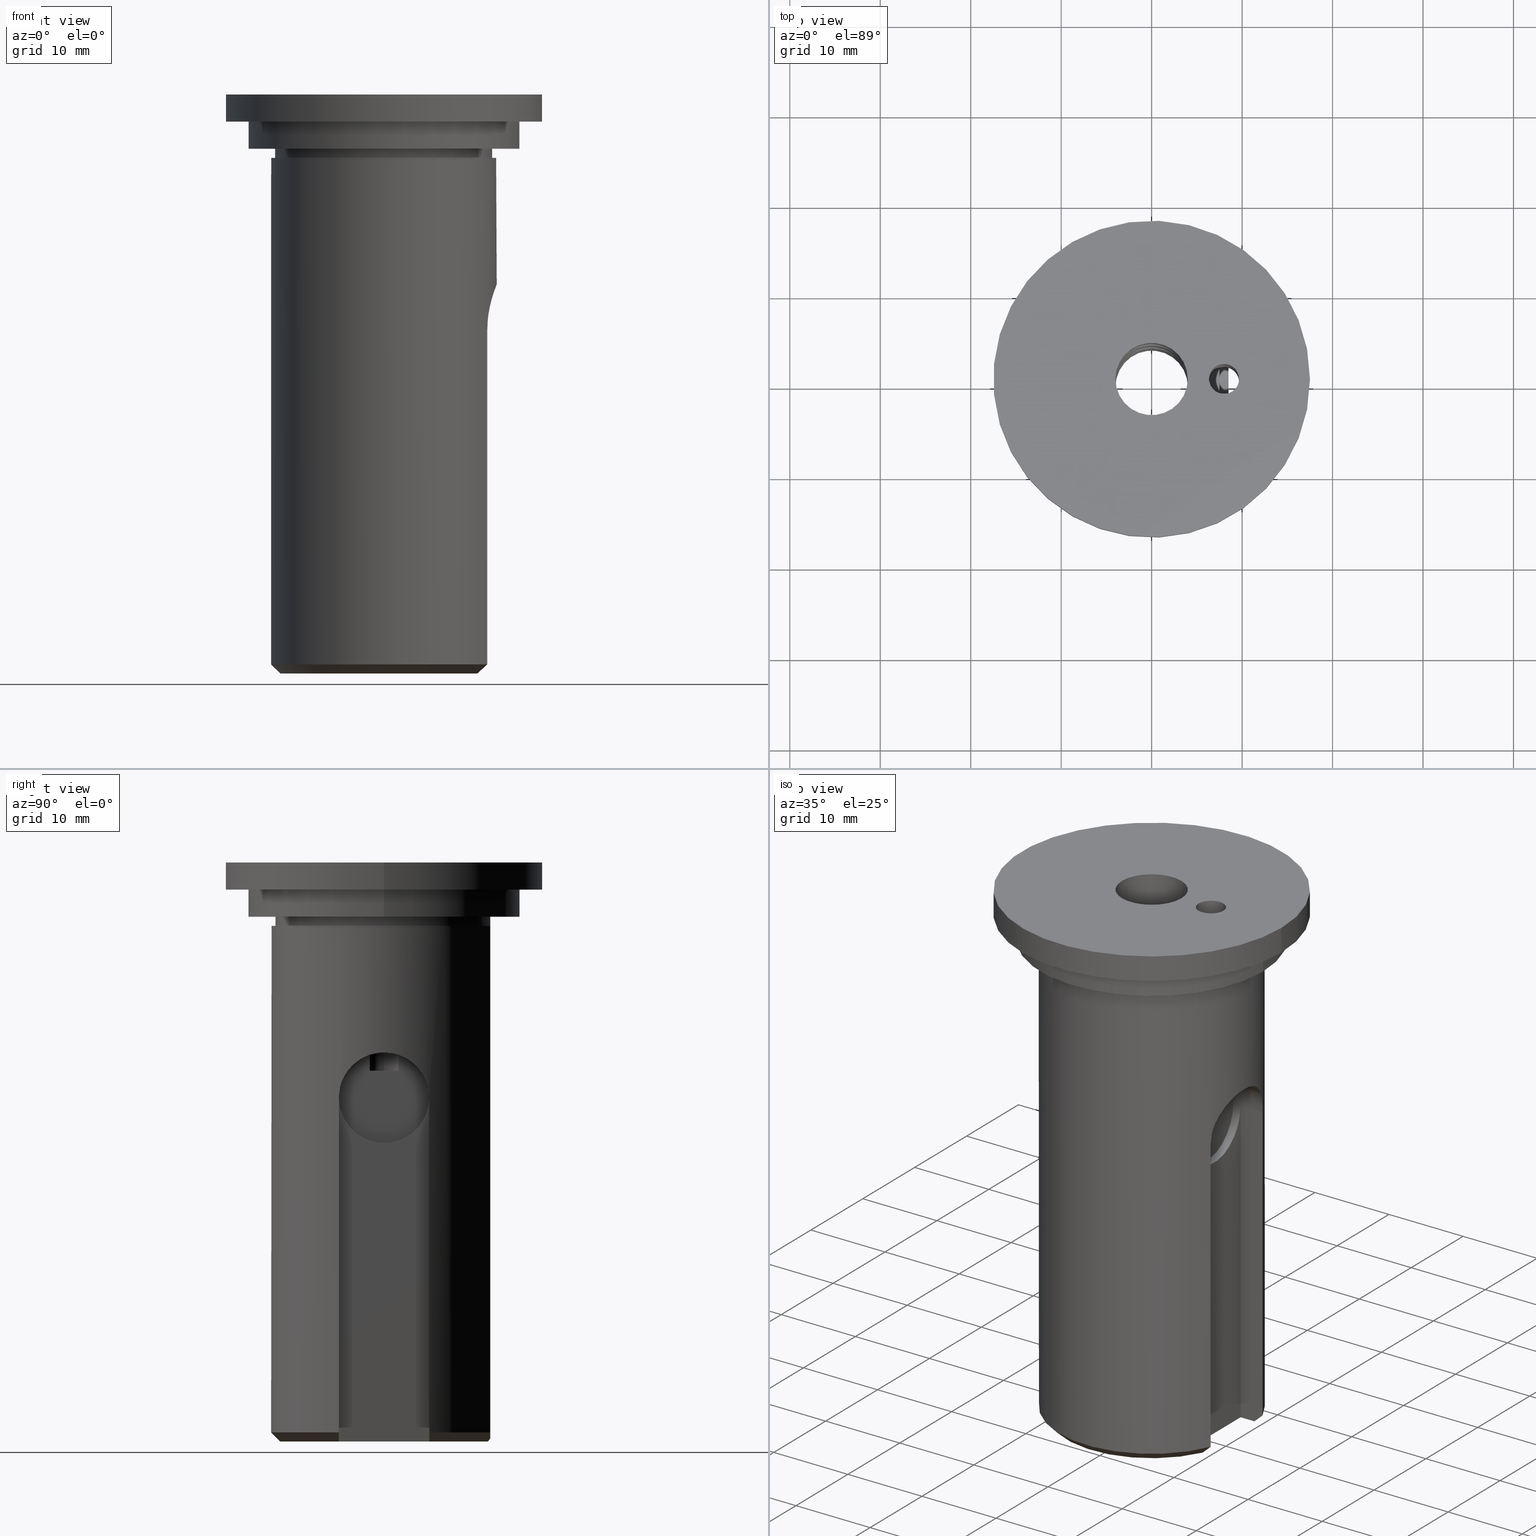
[diagram: canonical four-view strip — front | top / right | iso, engineering-drawing reading convention]
A machine part, canonical four-view strip (front | top / right | iso — engineering-drawing reading convention). The complete STEP part file that produces these views, byte-faithful:
ISO-10303-21;
HEADER;
/* Generated by software containing ST-Developer
 * from STEP Tools, Inc. (www.steptools.com) 
 */

FILE_DESCRIPTION(
/* description */ (''),
/* implementation_level */ '2;1');

FILE_NAME(
/* name */ 
'Y:/\X2\FF1166FD683975305DE5696D5171670930D530A130A430EB\X0\/\X2\30B930EA30FC30D6\X0\/
NC25-08OH/NC25-08OH v2.step',
/* time_stamp */ '2022-04-05T08:10:51+09:00',
/* author */ (''),
/* organization */ (''),
/* preprocessor_version */ 'ST-DEVELOPER v18.1',
/* originating_system */ 'Autodesk Translation Framework v10.14.0.1471',

/* authorisation */ '');

FILE_SCHEMA (('AUTOMOTIVE_DESIGN { 1 0 10303 214 3 1 1 }'));
ENDSEC;

DATA;
#10=MECHANICAL_DESIGN_GEOMETRIC_PRESENTATION_REPRESENTATION('',(#13),#846);
#11=SHAPE_REPRESENTATION_RELATIONSHIP('SRR','None',#853,#12);
#12=ADVANCED_BREP_SHAPE_REPRESENTATION('',(#14),#845);
#13=STYLED_ITEM('',(#862),#14);
#14=MANIFOLD_SOLID_BREP('\X2\30DC30C730A3\X0\1',#430);
#15=CONICAL_SURFACE('',#463,12.,0.785398163397454);
#16=FACE_BOUND('',#73,.T.);
#17=FACE_BOUND('',#78,.T.);
#18=FACE_BOUND('',#79,.T.);
#19=FACE_BOUND('',#81,.T.);
#20=FACE_BOUND('',#82,.T.);
#21=FACE_BOUND('',#85,.T.);
#22=FACE_BOUND('',#88,.T.);
#23=FACE_BOUND('',#93,.T.);
#24=FACE_BOUND('',#95,.T.);
#25=FACE_BOUND('',#96,.T.);
#26=(
BOUNDED_CURVE()
B_SPLINE_CURVE(2,(#690,#691,#692),.UNSPECIFIED.,.F.,.F.)
B_SPLINE_CURVE_WITH_KNOTS((3,3),(0.,0.148681884146899),.UNSPECIFIED.)
CURVE()
GEOMETRIC_REPRESENTATION_ITEM()
RATIONAL_B_SPLINE_CURVE((1.,1.00105254461095,1.))
REPRESENTATION_ITEM('')
);
#27=(
BOUNDED_CURVE()
B_SPLINE_CURVE(2,(#697,#698,#699),.UNSPECIFIED.,.F.,.F.)
B_SPLINE_CURVE_WITH_KNOTS((3,3),(0.,0.148681884146899),.UNSPECIFIED.)
CURVE()
GEOMETRIC_REPRESENTATION_ITEM()
RATIONAL_B_SPLINE_CURVE((1.,1.00105254460838,1.))
REPRESENTATION_ITEM('')
);
#28=(
BOUNDED_CURVE()
B_SPLINE_CURVE(2,(#716,#717,#718),.UNSPECIFIED.,.F.,.F.)
B_SPLINE_CURVE_WITH_KNOTS((3,3),(0.,0.86602540378443),.UNSPECIFIED.)
CURVE()
GEOMETRIC_REPRESENTATION_ITEM()
RATIONAL_B_SPLINE_CURVE((1.,1.06382978723403,1.))
REPRESENTATION_ITEM('')
);
#29=PLANE('',#448);
#30=PLANE('',#452);
#31=PLANE('',#453);
#32=PLANE('',#454);
#33=PLANE('',#455);
#34=PLANE('',#460);
#35=PLANE('',#468);
#36=PLANE('',#469);
#37=PLANE('',#474);
#38=PLANE('',#478);
#39=PLANE('',#482);
#40=PLANE('',#485);
#41=FACE_OUTER_BOUND('',#64,.T.);
#42=FACE_OUTER_BOUND('',#65,.T.);
#43=FACE_OUTER_BOUND('',#66,.T.);
#44=FACE_OUTER_BOUND('',#67,.T.);
#45=FACE_OUTER_BOUND('',#68,.T.);
#46=FACE_OUTER_BOUND('',#69,.T.);
#47=FACE_OUTER_BOUND('',#70,.T.);
#48=FACE_OUTER_BOUND('',#71,.T.);
#49=FACE_OUTER_BOUND('',#72,.T.);
#50=FACE_OUTER_BOUND('',#74,.T.);
#51=FACE_OUTER_BOUND('',#75,.T.);
#52=FACE_OUTER_BOUND('',#76,.T.);
#53=FACE_OUTER_BOUND('',#77,.T.);
#54=FACE_OUTER_BOUND('',#80,.T.);
#55=FACE_OUTER_BOUND('',#83,.T.);
#56=FACE_OUTER_BOUND('',#84,.T.);
#57=FACE_OUTER_BOUND('',#86,.T.);
#58=FACE_OUTER_BOUND('',#87,.T.);
#59=FACE_OUTER_BOUND('',#89,.T.);
#60=FACE_OUTER_BOUND('',#90,.T.);
#61=FACE_OUTER_BOUND('',#91,.T.);
#62=FACE_OUTER_BOUND('',#92,.T.);
#63=FACE_OUTER_BOUND('',#94,.T.);
#64=EDGE_LOOP('',(#279,#280,#281,#282,#283,#284,#285,#286,#287));
#65=EDGE_LOOP('',(#288,#289,#290));
#66=EDGE_LOOP('',(#291,#292,#293,#294,#295,#296,#297,#298,#299,#300));
#67=EDGE_LOOP('',(#301,#302,#303,#304));
#68=EDGE_LOOP('',(#305,#306,#307,#308));
#69=EDGE_LOOP('',(#309,#310,#311,#312,#313));
#70=EDGE_LOOP('',(#314,#315,#316,#317,#318));
#71=EDGE_LOOP('',(#319,#320,#321,#322,#323,#324,#325,#326,#327));
#72=EDGE_LOOP('',(#328,#329,#330,#331));
#73=EDGE_LOOP('',(#332));
#74=EDGE_LOOP('',(#333,#334,#335,#336,#337,#338));
#75=EDGE_LOOP('',(#339,#340,#341,#342,#343));
#76=EDGE_LOOP('',(#344,#345,#346,#347,#348));
#77=EDGE_LOOP('',(#349,#350,#351,#352,#353,#354,#355,#356));
#78=EDGE_LOOP('',(#357));
#79=EDGE_LOOP('',(#358));
#80=EDGE_LOOP('',(#359));
#81=EDGE_LOOP('',(#360));
#82=EDGE_LOOP('',(#361));
#83=EDGE_LOOP('',(#362,#363,#364,#365));
#84=EDGE_LOOP('',(#366));
#85=EDGE_LOOP('',(#367));
#86=EDGE_LOOP('',(#368,#369,#370,#371));
#87=EDGE_LOOP('',(#372));
#88=EDGE_LOOP('',(#373,#374));
#89=EDGE_LOOP('',(#375,#376,#377,#378));
#90=EDGE_LOOP('',(#379,#380,#381,#382));
#91=EDGE_LOOP('',(#383,#384,#385,#386));
#92=EDGE_LOOP('',(#387));
#93=EDGE_LOOP('',(#388));
#94=EDGE_LOOP('',(#389,#390,#391,#392));
#95=EDGE_LOOP('',(#393,#394));
#96=EDGE_LOOP('',(#395,#396));
#97=B_SPLINE_CURVE_WITH_KNOTS('',3,(#616,#617,#618,#619,#620,#621,#622,
#623,#624,#625,#626,#627),.UNSPECIFIED.,.F.,.F.,(4,2,2,2,2,4),(0.457106640739436,
0.506260606866501,0.569557836584048,0.632855066301595,0.696122988300673,
0.759390910299751),.UNSPECIFIED.);
#98=B_SPLINE_CURVE_WITH_KNOTS('',3,(#629,#630,#631,#632,#633,#634,#635,
#636,#637,#638,#639,#640,#641),.UNSPECIFIED.,.F.,.F.,(4,2,2,2,3,4),(0.759390910299751,
0.822658832298829,0.885926754297907,0.949223984015455,1.012521213733,1.06167517986007),
 .UNSPECIFIED.);
#99=B_SPLINE_CURVE_WITH_KNOTS('',3,(#650,#651,#652,#653,#654,#655,#656,
#657,#658,#659),.UNSPECIFIED.,.F.,.F.,(4,2,2,2,4),(-0.762729335551936,-0.572143500402293,
-0.381557665252652,-0.190778832626326,0.),.UNSPECIFIED.);
#100=B_SPLINE_CURVE_WITH_KNOTS('',3,(#663,#664,#665,#666,#667,#668,#669,
#670,#671,#672),.UNSPECIFIED.,.F.,.F.,(4,2,2,2,4),(-1.52545867110387,-1.33467983847755,
-1.14390100585122,-0.953315170701578,-0.762729335551936),.UNSPECIFIED.);
#101=B_SPLINE_CURVE_WITH_KNOTS('',3,(#725,#726,#727,#728,#729,#730,#731,
#732,#733,#734,#735,#736,#737,#738,#739,#740,#741,#742),.UNSPECIFIED.,.F.,
 .F.,(4,2,2,2,2,2,2,2,4),(0.,0.0986235986499876,0.197247197299975,0.295063559412484,
0.392879921524993,0.490696283637503,0.588512645750012,0.687136244399999,
0.785759843049987),.UNSPECIFIED.);
#102=B_SPLINE_CURVE_WITH_KNOTS('',3,(#743,#744,#745,#746,#747,#748,#749,
#750,#751,#752,#753,#754,#755,#756,#757,#758,#759,#760),.UNSPECIFIED.,.F.,
 .F.,(4,2,2,2,2,2,2,2,4),(0.785759843049987,0.884383441699975,0.983007040349962,
1.08082340246247,1.17863976457498,1.27645612668749,1.3742724888,1.47289608744999,
1.57151968609997),.UNSPECIFIED.);
#103=B_SPLINE_CURVE_WITH_KNOTS('',3,(#767,#768,#769,#770,#771,#772,#773,
#774,#775,#776,#777,#778,#779,#780,#781,#782,#783,#784),.UNSPECIFIED.,.F.,
 .F.,(4,2,2,2,2,2,2,2,4),(0.,0.0986235986499876,0.197247197299975,0.295063559412484,
0.392879921524993,0.490696283637503,0.588512645750012,0.687136244399999,
0.785759843049987),.UNSPECIFIED.);
#104=B_SPLINE_CURVE_WITH_KNOTS('',3,(#785,#786,#787,#788,#789,#790,#791,
#792,#793,#794,#795,#796,#797,#798,#799,#800,#801,#802),.UNSPECIFIED.,.F.,
 .F.,(4,2,2,2,2,2,2,2,4),(0.785759843049987,0.884383441699974,0.983007040349962,
1.08082340246247,1.17863976457498,1.27645612668749,1.3742724888,1.47289608744999,
1.57151968609997),.UNSPECIFIED.);
#105=LINE('',#610,#132);
#106=LINE('',#614,#133);
#107=LINE('',#643,#134);
#108=LINE('',#646,#135);
#109=LINE('',#660,#136);
#110=LINE('',#674,#137);
#111=LINE('',#677,#138);
#112=LINE('',#681,#139);
#113=LINE('',#683,#140);
#114=LINE('',#684,#141);
#115=LINE('',#687,#142);
#116=LINE('',#689,#143);
#117=LINE('',#695,#144);
#118=LINE('',#700,#145);
#119=LINE('',#705,#146);
#120=LINE('',#709,#147);
#121=LINE('',#723,#148);
#122=LINE('',#765,#149);
#123=LINE('',#806,#150);
#124=LINE('',#808,#151);
#125=LINE('',#810,#152);
#126=LINE('',#811,#153);
#127=LINE('',#812,#154);
#128=LINE('',#821,#155);
#129=LINE('',#828,#156);
#130=LINE('',#836,#157);
#131=LINE('',#842,#158);
#132=VECTOR('',#494,1.6);
#133=VECTOR('',#497,10.);
#134=VECTOR('',#498,10.);
#135=VECTOR('',#503,10.);
#136=VECTOR('',#506,5.);
#137=VECTOR('',#509,10.);
#138=VECTOR('',#512,10.);
#139=VECTOR('',#517,10.);
#140=VECTOR('',#518,10.);
#141=VECTOR('',#519,10.);
#142=VECTOR('',#522,10.);
#143=VECTOR('',#523,10.);
#144=VECTOR('',#526,10.);
#145=VECTOR('',#527,10.);
#146=VECTOR('',#532,10.);
#147=VECTOR('',#535,10.);
#148=VECTOR('',#550,2.55);
#149=VECTOR('',#555,2.55);
#150=VECTOR('',#558,10.);
#151=VECTOR('',#559,10.);
#152=VECTOR('',#560,10.);
#153=VECTOR('',#561,10.);
#154=VECTOR('',#562,10.);
#155=VECTOR('',#573,17.5);
#156=VECTOR('',#582,15.);
#157=VECTOR('',#595,5.00000000000012);
#158=VECTOR('',#604,4.);
#159=CIRCLE('',#445,1.666);
#160=CIRCLE('',#446,1.666);
#161=CIRCLE('',#447,1.666);
#162=CIRCLE('',#450,5.);
#163=CIRCLE('',#451,5.);
#164=CIRCLE('',#457,12.5);
#165=CIRCLE('',#458,12.5);
#166=CIRCLE('',#459,12.5);
#167=CIRCLE('',#461,11.5);
#168=CIRCLE('',#462,5.00000000000024);
#169=CIRCLE('',#465,2.5175);
#170=CIRCLE('',#467,2.5175);
#171=CIRCLE('',#470,17.5);
#172=CIRCLE('',#471,4.);
#173=CIRCLE('',#473,17.5);
#174=CIRCLE('',#475,15.);
#175=CIRCLE('',#477,15.);
#176=CIRCLE('',#479,12.);
#177=CIRCLE('',#481,12.);
#178=CIRCLE('',#484,4.99999999999999);
#179=CIRCLE('',#486,4.);
#180=VERTEX_POINT('',#607);
#181=VERTEX_POINT('',#609);
#182=VERTEX_POINT('',#611);
#183=VERTEX_POINT('',#613);
#184=VERTEX_POINT('',#615);
#185=VERTEX_POINT('',#628);
#186=VERTEX_POINT('',#642);
#187=VERTEX_POINT('',#648);
#188=VERTEX_POINT('',#649);
#189=VERTEX_POINT('',#662);
#190=VERTEX_POINT('',#673);
#191=VERTEX_POINT('',#675);
#192=VERTEX_POINT('',#680);
#193=VERTEX_POINT('',#682);
#194=VERTEX_POINT('',#686);
#195=VERTEX_POINT('',#688);
#196=VERTEX_POINT('',#694);
#197=VERTEX_POINT('',#696);
#198=VERTEX_POINT('',#702);
#199=VERTEX_POINT('',#704);
#200=VERTEX_POINT('',#706);
#201=VERTEX_POINT('',#708);
#202=VERTEX_POINT('',#713);
#203=VERTEX_POINT('',#720);
#204=VERTEX_POINT('',#722);
#205=VERTEX_POINT('',#724);
#206=VERTEX_POINT('',#762);
#207=VERTEX_POINT('',#764);
#208=VERTEX_POINT('',#766);
#209=VERTEX_POINT('',#804);
#210=VERTEX_POINT('',#805);
#211=VERTEX_POINT('',#807);
#212=VERTEX_POINT('',#809);
#213=VERTEX_POINT('',#814);
#214=VERTEX_POINT('',#816);
#215=VERTEX_POINT('',#819);
#216=VERTEX_POINT('',#823);
#217=VERTEX_POINT('',#826);
#218=VERTEX_POINT('',#835);
#219=VERTEX_POINT('',#839);
#220=EDGE_CURVE('',#180,#180,#159,.T.);
#221=EDGE_CURVE('',#180,#181,#105,.T.);
#222=EDGE_CURVE('',#181,#182,#160,.T.);
#223=EDGE_CURVE('',#183,#182,#106,.T.);
#224=EDGE_CURVE('',#184,#183,#97,.F.);
#225=EDGE_CURVE('',#185,#184,#98,.F.);
#226=EDGE_CURVE('',#186,#185,#107,.T.);
#227=EDGE_CURVE('',#186,#181,#161,.T.);
#228=EDGE_CURVE('',#182,#186,#108,.T.);
#229=EDGE_CURVE('',#187,#188,#99,.T.);
#230=EDGE_CURVE('',#187,#184,#109,.T.);
#231=EDGE_CURVE('',#183,#185,#162,.T.);
#232=EDGE_CURVE('',#189,#187,#100,.T.);
#233=EDGE_CURVE('',#189,#190,#110,.T.);
#234=EDGE_CURVE('',#191,#190,#163,.T.);
#235=EDGE_CURVE('',#188,#191,#111,.T.);
#236=EDGE_CURVE('',#192,#190,#112,.T.);
#237=EDGE_CURVE('',#193,#192,#113,.T.);
#238=EDGE_CURVE('',#191,#193,#114,.T.);
#239=EDGE_CURVE('',#188,#194,#115,.T.);
#240=EDGE_CURVE('',#195,#193,#116,.T.);
#241=EDGE_CURVE('',#194,#195,#26,.T.);
#242=EDGE_CURVE('',#196,#189,#117,.T.);
#243=EDGE_CURVE('',#197,#196,#27,.T.);
#244=EDGE_CURVE('',#192,#197,#118,.T.);
#245=EDGE_CURVE('',#198,#194,#164,.T.);
#246=EDGE_CURVE('',#198,#199,#119,.T.);
#247=EDGE_CURVE('',#199,#200,#165,.T.);
#248=EDGE_CURVE('',#200,#201,#120,.T.);
#249=EDGE_CURVE('',#196,#201,#166,.T.);
#250=EDGE_CURVE('',#197,#195,#167,.T.);
#251=EDGE_CURVE('',#202,#202,#168,.T.);
#252=EDGE_CURVE('',#201,#198,#28,.T.);
#253=EDGE_CURVE('',#203,#203,#169,.F.);
#254=EDGE_CURVE('',#203,#204,#121,.T.);
#255=EDGE_CURVE('',#205,#204,#101,.T.);
#256=EDGE_CURVE('',#204,#205,#102,.T.);
#257=EDGE_CURVE('',#206,#206,#170,.F.);
#258=EDGE_CURVE('',#206,#207,#122,.T.);
#259=EDGE_CURVE('',#208,#207,#103,.T.);
#260=EDGE_CURVE('',#207,#208,#104,.T.);
#261=EDGE_CURVE('',#209,#210,#123,.T.);
#262=EDGE_CURVE('',#209,#211,#124,.T.);
#263=EDGE_CURVE('',#212,#211,#125,.T.);
#264=EDGE_CURVE('',#199,#212,#126,.T.);
#265=EDGE_CURVE('',#210,#200,#127,.T.);
#266=EDGE_CURVE('',#213,#213,#171,.T.);
#267=EDGE_CURVE('',#214,#214,#172,.T.);
#268=EDGE_CURVE('',#215,#215,#173,.T.);
#269=EDGE_CURVE('',#215,#213,#128,.T.);
#270=EDGE_CURVE('',#216,#216,#174,.T.);
#271=EDGE_CURVE('',#217,#217,#175,.T.);
#272=EDGE_CURVE('',#217,#216,#129,.T.);
#273=EDGE_CURVE('',#211,#209,#176,.T.);
#274=EDGE_CURVE('',#212,#210,#177,.T.);
#275=EDGE_CURVE('',#202,#218,#130,.T.);
#276=EDGE_CURVE('',#218,#218,#178,.T.);
#277=EDGE_CURVE('',#219,#219,#179,.T.);
#278=EDGE_CURVE('',#219,#214,#131,.T.);
#279=ORIENTED_EDGE('',*,*,#220,.F.);
#280=ORIENTED_EDGE('',*,*,#221,.T.);
#281=ORIENTED_EDGE('',*,*,#222,.T.);
#282=ORIENTED_EDGE('',*,*,#223,.F.);
#283=ORIENTED_EDGE('',*,*,#224,.F.);
#284=ORIENTED_EDGE('',*,*,#225,.F.);
#285=ORIENTED_EDGE('',*,*,#226,.F.);
#286=ORIENTED_EDGE('',*,*,#227,.T.);
#287=ORIENTED_EDGE('',*,*,#221,.F.);
#288=ORIENTED_EDGE('',*,*,#228,.F.);
#289=ORIENTED_EDGE('',*,*,#222,.F.);
#290=ORIENTED_EDGE('',*,*,#227,.F.);
#291=ORIENTED_EDGE('',*,*,#229,.F.);
#292=ORIENTED_EDGE('',*,*,#230,.T.);
#293=ORIENTED_EDGE('',*,*,#224,.T.);
#294=ORIENTED_EDGE('',*,*,#231,.T.);
#295=ORIENTED_EDGE('',*,*,#225,.T.);
#296=ORIENTED_EDGE('',*,*,#230,.F.);
#297=ORIENTED_EDGE('',*,*,#232,.F.);
#298=ORIENTED_EDGE('',*,*,#233,.T.);
#299=ORIENTED_EDGE('',*,*,#234,.F.);
#300=ORIENTED_EDGE('',*,*,#235,.F.);
#301=ORIENTED_EDGE('',*,*,#226,.T.);
#302=ORIENTED_EDGE('',*,*,#231,.F.);
#303=ORIENTED_EDGE('',*,*,#223,.T.);
#304=ORIENTED_EDGE('',*,*,#228,.T.);
#305=ORIENTED_EDGE('',*,*,#234,.T.);
#306=ORIENTED_EDGE('',*,*,#236,.F.);
#307=ORIENTED_EDGE('',*,*,#237,.F.);
#308=ORIENTED_EDGE('',*,*,#238,.F.);
#309=ORIENTED_EDGE('',*,*,#239,.F.);
#310=ORIENTED_EDGE('',*,*,#235,.T.);
#311=ORIENTED_EDGE('',*,*,#238,.T.);
#312=ORIENTED_EDGE('',*,*,#240,.F.);
#313=ORIENTED_EDGE('',*,*,#241,.F.);
#314=ORIENTED_EDGE('',*,*,#242,.F.);
#315=ORIENTED_EDGE('',*,*,#243,.F.);
#316=ORIENTED_EDGE('',*,*,#244,.F.);
#317=ORIENTED_EDGE('',*,*,#236,.T.);
#318=ORIENTED_EDGE('',*,*,#233,.F.);
#319=ORIENTED_EDGE('',*,*,#239,.T.);
#320=ORIENTED_EDGE('',*,*,#245,.F.);
#321=ORIENTED_EDGE('',*,*,#246,.T.);
#322=ORIENTED_EDGE('',*,*,#247,.T.);
#323=ORIENTED_EDGE('',*,*,#248,.T.);
#324=ORIENTED_EDGE('',*,*,#249,.F.);
#325=ORIENTED_EDGE('',*,*,#242,.T.);
#326=ORIENTED_EDGE('',*,*,#232,.T.);
#327=ORIENTED_EDGE('',*,*,#229,.T.);
#328=ORIENTED_EDGE('',*,*,#240,.T.);
#329=ORIENTED_EDGE('',*,*,#237,.T.);
#330=ORIENTED_EDGE('',*,*,#244,.T.);
#331=ORIENTED_EDGE('',*,*,#250,.T.);
#332=ORIENTED_EDGE('',*,*,#251,.F.);
#333=ORIENTED_EDGE('',*,*,#241,.T.);
#334=ORIENTED_EDGE('',*,*,#250,.F.);
#335=ORIENTED_EDGE('',*,*,#243,.T.);
#336=ORIENTED_EDGE('',*,*,#249,.T.);
#337=ORIENTED_EDGE('',*,*,#252,.T.);
#338=ORIENTED_EDGE('',*,*,#245,.T.);
#339=ORIENTED_EDGE('',*,*,#253,.F.);
#340=ORIENTED_EDGE('',*,*,#254,.T.);
#341=ORIENTED_EDGE('',*,*,#255,.F.);
#342=ORIENTED_EDGE('',*,*,#256,.F.);
#343=ORIENTED_EDGE('',*,*,#254,.F.);
#344=ORIENTED_EDGE('',*,*,#257,.F.);
#345=ORIENTED_EDGE('',*,*,#258,.T.);
#346=ORIENTED_EDGE('',*,*,#259,.F.);
#347=ORIENTED_EDGE('',*,*,#260,.F.);
#348=ORIENTED_EDGE('',*,*,#258,.F.);
#349=ORIENTED_EDGE('',*,*,#261,.F.);
#350=ORIENTED_EDGE('',*,*,#262,.T.);
#351=ORIENTED_EDGE('',*,*,#263,.F.);
#352=ORIENTED_EDGE('',*,*,#264,.F.);
#353=ORIENTED_EDGE('',*,*,#246,.F.);
#354=ORIENTED_EDGE('',*,*,#252,.F.);
#355=ORIENTED_EDGE('',*,*,#248,.F.);
#356=ORIENTED_EDGE('',*,*,#265,.F.);
#357=ORIENTED_EDGE('',*,*,#253,.T.);
#358=ORIENTED_EDGE('',*,*,#257,.T.);
#359=ORIENTED_EDGE('',*,*,#266,.F.);
#360=ORIENTED_EDGE('',*,*,#220,.T.);
#361=ORIENTED_EDGE('',*,*,#267,.T.);
#362=ORIENTED_EDGE('',*,*,#268,.F.);
#363=ORIENTED_EDGE('',*,*,#269,.T.);
#364=ORIENTED_EDGE('',*,*,#266,.T.);
#365=ORIENTED_EDGE('',*,*,#269,.F.);
#366=ORIENTED_EDGE('',*,*,#268,.T.);
#367=ORIENTED_EDGE('',*,*,#270,.F.);
#368=ORIENTED_EDGE('',*,*,#271,.F.);
#369=ORIENTED_EDGE('',*,*,#272,.T.);
#370=ORIENTED_EDGE('',*,*,#270,.T.);
#371=ORIENTED_EDGE('',*,*,#272,.F.);
#372=ORIENTED_EDGE('',*,*,#271,.T.);
#373=ORIENTED_EDGE('',*,*,#273,.F.);
#374=ORIENTED_EDGE('',*,*,#262,.F.);
#375=ORIENTED_EDGE('',*,*,#261,.T.);
#376=ORIENTED_EDGE('',*,*,#274,.F.);
#377=ORIENTED_EDGE('',*,*,#263,.T.);
#378=ORIENTED_EDGE('',*,*,#273,.T.);
#379=ORIENTED_EDGE('',*,*,#265,.T.);
#380=ORIENTED_EDGE('',*,*,#247,.F.);
#381=ORIENTED_EDGE('',*,*,#264,.T.);
#382=ORIENTED_EDGE('',*,*,#274,.T.);
#383=ORIENTED_EDGE('',*,*,#251,.T.);
#384=ORIENTED_EDGE('',*,*,#275,.T.);
#385=ORIENTED_EDGE('',*,*,#276,.F.);
#386=ORIENTED_EDGE('',*,*,#275,.F.);
#387=ORIENTED_EDGE('',*,*,#276,.T.);
#388=ORIENTED_EDGE('',*,*,#277,.F.);
#389=ORIENTED_EDGE('',*,*,#277,.T.);
#390=ORIENTED_EDGE('',*,*,#278,.T.);
#391=ORIENTED_EDGE('',*,*,#267,.F.);
#392=ORIENTED_EDGE('',*,*,#278,.F.);
#393=ORIENTED_EDGE('',*,*,#255,.T.);
#394=ORIENTED_EDGE('',*,*,#256,.T.);
#395=ORIENTED_EDGE('',*,*,#259,.T.);
#396=ORIENTED_EDGE('',*,*,#260,.T.);
#397=CYLINDRICAL_SURFACE('',#444,1.666);
#398=CYLINDRICAL_SURFACE('',#449,5.);
#399=CYLINDRICAL_SURFACE('',#456,12.5);
#400=CYLINDRICAL_SURFACE('',#464,2.5175);
#401=CYLINDRICAL_SURFACE('',#466,2.5175);
#402=CYLINDRICAL_SURFACE('',#472,17.5);
#403=CYLINDRICAL_SURFACE('',#476,15.);
#404=CYLINDRICAL_SURFACE('',#480,12.);
#405=CYLINDRICAL_SURFACE('',#483,5.00000000000012);
#406=CYLINDRICAL_SURFACE('',#487,4.);
#407=ADVANCED_FACE('',(#41),#397,.F.);
#408=ADVANCED_FACE('',(#42),#29,.T.);
#409=ADVANCED_FACE('',(#43),#398,.F.);
#410=ADVANCED_FACE('',(#44),#30,.T.);
#411=ADVANCED_FACE('',(#45),#31,.T.);
#412=ADVANCED_FACE('',(#46),#32,.F.);
#413=ADVANCED_FACE('',(#47),#33,.F.);
#414=ADVANCED_FACE('',(#48),#399,.T.);
#415=ADVANCED_FACE('',(#49,#16),#34,.T.);
#416=ADVANCED_FACE('',(#50),#15,.T.);
#417=ADVANCED_FACE('',(#51),#400,.F.);
#418=ADVANCED_FACE('',(#52),#401,.F.);
#419=ADVANCED_FACE('',(#53,#17,#18),#35,.F.);
#420=ADVANCED_FACE('',(#54,#19,#20),#36,.T.);
#421=ADVANCED_FACE('',(#55),#402,.T.);
#422=ADVANCED_FACE('',(#56,#21),#37,.T.);
#423=ADVANCED_FACE('',(#57),#403,.T.);
#424=ADVANCED_FACE('',(#58,#22),#38,.T.);
#425=ADVANCED_FACE('',(#59),#404,.T.);
#426=ADVANCED_FACE('',(#60),#39,.T.);
#427=ADVANCED_FACE('',(#61),#405,.F.);
#428=ADVANCED_FACE('',(#62,#23),#40,.T.);
#429=ADVANCED_FACE('',(#63,#24,#25),#406,.F.);
#430=CLOSED_SHELL('',(#407,#408,#409,#410,#411,#412,#413,#414,#415,#416,
#417,#418,#419,#420,#421,#422,#423,#424,#425,#426,#427,#428,#429));
#431=DERIVED_UNIT_ELEMENT(#433,1.);
#432=DERIVED_UNIT_ELEMENT(#848,-3.);
#433=(
MASS_UNIT()
NAMED_UNIT(*)
SI_UNIT(.KILO.,.GRAM.)
);
#434=DERIVED_UNIT((#431,#432));
#435=MEASURE_REPRESENTATION_ITEM('density measure',
POSITIVE_RATIO_MEASURE(7850.),#434);
#436=PROPERTY_DEFINITION_REPRESENTATION(#441,#438);
#437=PROPERTY_DEFINITION_REPRESENTATION(#442,#439);
#438=REPRESENTATION('material name',(#440),#845);
#439=REPRESENTATION('density',(#435),#845);
#440=DESCRIPTIVE_REPRESENTATION_ITEM('\X2\92FC\X0\','\X2\92FC\X0\');
#441=PROPERTY_DEFINITION('material property','material name',#855);
#442=PROPERTY_DEFINITION('material property','density of part',#855);
#443=AXIS2_PLACEMENT_3D('placement',#605,#488,#489);
#444=AXIS2_PLACEMENT_3D('',#606,#490,#491);
#445=AXIS2_PLACEMENT_3D('',#608,#492,#493);
#446=AXIS2_PLACEMENT_3D('',#612,#495,#496);
#447=AXIS2_PLACEMENT_3D('',#644,#499,#500);
#448=AXIS2_PLACEMENT_3D('',#645,#501,#502);
#449=AXIS2_PLACEMENT_3D('',#647,#504,#505);
#450=AXIS2_PLACEMENT_3D('',#661,#507,#508);
#451=AXIS2_PLACEMENT_3D('',#676,#510,#511);
#452=AXIS2_PLACEMENT_3D('',#678,#513,#514);
#453=AXIS2_PLACEMENT_3D('',#679,#515,#516);
#454=AXIS2_PLACEMENT_3D('',#685,#520,#521);
#455=AXIS2_PLACEMENT_3D('',#693,#524,#525);
#456=AXIS2_PLACEMENT_3D('',#701,#528,#529);
#457=AXIS2_PLACEMENT_3D('',#703,#530,#531);
#458=AXIS2_PLACEMENT_3D('',#707,#533,#534);
#459=AXIS2_PLACEMENT_3D('',#710,#536,#537);
#460=AXIS2_PLACEMENT_3D('',#711,#538,#539);
#461=AXIS2_PLACEMENT_3D('',#712,#540,#541);
#462=AXIS2_PLACEMENT_3D('',#714,#542,#543);
#463=AXIS2_PLACEMENT_3D('',#715,#544,#545);
#464=AXIS2_PLACEMENT_3D('',#719,#546,#547);
#465=AXIS2_PLACEMENT_3D('',#721,#548,#549);
#466=AXIS2_PLACEMENT_3D('',#761,#551,#552);
#467=AXIS2_PLACEMENT_3D('',#763,#553,#554);
#468=AXIS2_PLACEMENT_3D('',#803,#556,#557);
#469=AXIS2_PLACEMENT_3D('',#813,#563,#564);
#470=AXIS2_PLACEMENT_3D('',#815,#565,#566);
#471=AXIS2_PLACEMENT_3D('',#817,#567,#568);
#472=AXIS2_PLACEMENT_3D('',#818,#569,#570);
#473=AXIS2_PLACEMENT_3D('',#820,#571,#572);
#474=AXIS2_PLACEMENT_3D('',#822,#574,#575);
#475=AXIS2_PLACEMENT_3D('',#824,#576,#577);
#476=AXIS2_PLACEMENT_3D('',#825,#578,#579);
#477=AXIS2_PLACEMENT_3D('',#827,#580,#581);
#478=AXIS2_PLACEMENT_3D('',#829,#583,#584);
#479=AXIS2_PLACEMENT_3D('',#830,#585,#586);
#480=AXIS2_PLACEMENT_3D('',#831,#587,#588);
#481=AXIS2_PLACEMENT_3D('',#832,#589,#590);
#482=AXIS2_PLACEMENT_3D('',#833,#591,#592);
#483=AXIS2_PLACEMENT_3D('',#834,#593,#594);
#484=AXIS2_PLACEMENT_3D('',#837,#596,#597);
#485=AXIS2_PLACEMENT_3D('',#838,#598,#599);
#486=AXIS2_PLACEMENT_3D('',#840,#600,#601);
#487=AXIS2_PLACEMENT_3D('',#841,#602,#603);
#488=DIRECTION('axis',(0.,0.,1.));
#489=DIRECTION('refdir',(1.,0.,0.));
#490=DIRECTION('center_axis',(0.,0.,-1.));
#491=DIRECTION('ref_axis',(1.,0.,0.));
#492=DIRECTION('center_axis',(0.,0.,-1.));
#493=DIRECTION('ref_axis',(1.,0.,0.));
#494=DIRECTION('',(0.,0.,-1.));
#495=DIRECTION('center_axis',(0.,0.,-1.));
#496=DIRECTION('ref_axis',(1.,0.,0.));
#497=DIRECTION('',(0.,0.,-1.));
#498=DIRECTION('',(0.,0.,1.));
#499=DIRECTION('center_axis',(0.,0.,-1.));
#500=DIRECTION('ref_axis',(1.,0.,0.));
#501=DIRECTION('center_axis',(0.,0.,1.));
#502=DIRECTION('ref_axis',(1.,0.,0.));
#503=DIRECTION('',(0.,-1.,0.));
#504=DIRECTION('center_axis',(-1.,0.,0.));
#505=DIRECTION('ref_axis',(0.,0.,-1.));
#506=DIRECTION('',(-1.,0.,0.));
#507=DIRECTION('center_axis',(-1.,0.,0.));
#508=DIRECTION('ref_axis',(0.,0.,-1.));
#509=DIRECTION('',(-1.,0.,0.));
#510=DIRECTION('center_axis',(-1.,0.,0.));
#511=DIRECTION('ref_axis',(0.,0.,-1.));
#512=DIRECTION('',(-1.,0.,0.));
#513=DIRECTION('center_axis',(1.,0.,0.));
#514=DIRECTION('ref_axis',(0.,0.,-1.));
#515=DIRECTION('center_axis',(1.,0.,0.));
#516=DIRECTION('ref_axis',(0.,0.,-1.));
#517=DIRECTION('',(0.,0.,1.));
#518=DIRECTION('',(0.,-1.,0.));
#519=DIRECTION('',(0.,5.84327907697451E-17,-1.));
#520=DIRECTION('center_axis',(0.,1.,5.84327907697451E-17));
#521=DIRECTION('ref_axis',(0.,5.84327907697451E-17,-1.));
#522=DIRECTION('',(0.,0.,-1.));
#523=DIRECTION('',(-1.,0.,0.));
#524=DIRECTION('center_axis',(0.,-1.,0.));
#525=DIRECTION('ref_axis',(0.,0.,1.));
#526=DIRECTION('',(0.,0.,1.));
#527=DIRECTION('',(1.,0.,0.));
#528=DIRECTION('center_axis',(0.,0.,-1.));
#529=DIRECTION('ref_axis',(1.83697019872103E-16,-1.,0.));
#530=DIRECTION('center_axis',(0.,0.,-1.));
#531=DIRECTION('ref_axis',(1.,0.,0.));
#532=DIRECTION('',(0.,0.,1.));
#533=DIRECTION('center_axis',(0.,0.,-1.));
#534=DIRECTION('ref_axis',(1.,0.,0.));
#535=DIRECTION('',(0.,0.,-1.));
#536=DIRECTION('center_axis',(0.,0.,-1.));
#537=DIRECTION('ref_axis',(1.,0.,0.));
#538=DIRECTION('center_axis',(0.,0.,-1.));
#539=DIRECTION('ref_axis',(-1.,0.,0.));
#540=DIRECTION('center_axis',(0.,0.,-1.));
#541=DIRECTION('ref_axis',(1.,0.,0.));
#542=DIRECTION('center_axis',(0.,0.,-1.));
#543=DIRECTION('ref_axis',(1.,0.,0.));
#544=DIRECTION('center_axis',(0.,0.,1.));
#545=DIRECTION('ref_axis',(-1.,0.,0.));
#546=DIRECTION('center_axis',(0.,-1.,0.));
#547=DIRECTION('ref_axis',(-1.,0.,0.));
#548=DIRECTION('center_axis',(0.,1.,0.));
#549=DIRECTION('ref_axis',(-1.,0.,0.));
#550=DIRECTION('',(0.,-1.,0.));
#551=DIRECTION('center_axis',(0.,-1.,0.));
#552=DIRECTION('ref_axis',(-1.,0.,0.));
#553=DIRECTION('center_axis',(0.,1.,0.));
#554=DIRECTION('ref_axis',(-1.,0.,0.));
#555=DIRECTION('',(0.,-1.,0.));
#556=DIRECTION('center_axis',(0.,-1.,0.));
#557=DIRECTION('ref_axis',(1.,0.,0.));
#558=DIRECTION('',(0.,0.,-1.));
#559=DIRECTION('',(1.,0.,0.));
#560=DIRECTION('',(0.,0.,1.));
#561=DIRECTION('',(-1.,0.,0.));
#562=DIRECTION('',(-1.,0.,0.));
#563=DIRECTION('center_axis',(0.,0.,1.));
#564=DIRECTION('ref_axis',(1.,0.,0.));
#565=DIRECTION('center_axis',(0.,0.,-1.));
#566=DIRECTION('ref_axis',(1.,0.,0.));
#567=DIRECTION('center_axis',(0.,0.,-1.));
#568=DIRECTION('ref_axis',(1.,0.,0.));
#569=DIRECTION('center_axis',(0.,0.,-1.));
#570=DIRECTION('ref_axis',(-1.,0.,0.));
#571=DIRECTION('center_axis',(0.,0.,-1.));
#572=DIRECTION('ref_axis',(1.,0.,0.));
#573=DIRECTION('',(0.,0.,1.));
#574=DIRECTION('center_axis',(0.,0.,-1.));
#575=DIRECTION('ref_axis',(-1.,0.,0.));
#576=DIRECTION('center_axis',(0.,0.,-1.));
#577=DIRECTION('ref_axis',(1.,0.,0.));
#578=DIRECTION('center_axis',(0.,0.,-1.));
#579=DIRECTION('ref_axis',(-1.,0.,0.));
#580=DIRECTION('center_axis',(0.,0.,-1.));
#581=DIRECTION('ref_axis',(1.,0.,0.));
#582=DIRECTION('',(0.,0.,1.));
#583=DIRECTION('center_axis',(0.,0.,-1.));
#584=DIRECTION('ref_axis',(-1.,0.,0.));
#585=DIRECTION('center_axis',(0.,0.,-1.));
#586=DIRECTION('ref_axis',(1.,0.,0.));
#587=DIRECTION('center_axis',(0.,0.,-1.));
#588=DIRECTION('ref_axis',(-6.12323399573677E-17,-1.,0.));
#589=DIRECTION('center_axis',(0.,0.,-1.));
#590=DIRECTION('ref_axis',(1.,0.,0.));
#591=DIRECTION('center_axis',(0.,0.,1.));
#592=DIRECTION('ref_axis',(1.,0.,0.));
#593=DIRECTION('center_axis',(0.,0.,-1.));
#594=DIRECTION('ref_axis',(-1.,0.,0.));
#595=DIRECTION('',(0.,0.,1.));
#596=DIRECTION('center_axis',(0.,0.,-1.));
#597=DIRECTION('ref_axis',(1.,0.,0.));
#598=DIRECTION('center_axis',(0.,0.,-1.));
#599=DIRECTION('ref_axis',(-1.,0.,0.));
#600=DIRECTION('center_axis',(0.,0.,-1.));
#601=DIRECTION('ref_axis',(1.,0.,0.));
#602=DIRECTION('center_axis',(0.,0.,-1.));
#603=DIRECTION('ref_axis',(-1.,0.,0.));
#604=DIRECTION('',(0.,0.,1.));
#605=CARTESIAN_POINT('',(0.,0.,0.));
#606=CARTESIAN_POINT('Origin',(8.00000011920929,0.,0.));
#607=CARTESIAN_POINT('',(6.33400011920929,2.04026156737949E-16,-3.88578058618805E-15));
#608=CARTESIAN_POINT('Origin',(8.00000011920929,0.,-3.88578058618805E-15));
#609=CARTESIAN_POINT('',(6.33400011920929,2.04026156737949E-16,-23.));
#610=CARTESIAN_POINT('',(6.33400011920929,2.04026156737949E-16,0.));
#611=CARTESIAN_POINT('',(7.5,1.58919976113473,-23.));
#612=CARTESIAN_POINT('Origin',(8.00000011920929,0.,-23.));
#613=CARTESIAN_POINT('',(7.5,1.58919976113473,-21.2592781014692));
#614=CARTESIAN_POINT('',(7.5,1.58919976113473,0.));
#615=CARTESIAN_POINT('',(9.66600011920929,5.49022986423591E-16,-21.));
#616=CARTESIAN_POINT('Ctrl Pts',(7.5,1.58919976113473,-21.2592781014692));
#617=CARTESIAN_POINT('Ctrl Pts',(7.66435709595379,1.64091042053674,-21.2766127119629));
#618=CARTESIAN_POINT('Ctrl Pts',(7.83615356545241,1.666,-21.2857191428597));
#619=CARTESIAN_POINT('Ctrl Pts',(8.21099088493445,1.666,-21.2857191428597));
#620=CARTESIAN_POINT('Ctrl Pts',(8.43482728452895,1.6235014968162,-21.2700666131484));
#621=CARTESIAN_POINT('Ctrl Pts',(8.84474911248202,1.45300770264397,-21.2149404207144));
#622=CARTESIAN_POINT('Ctrl Pts',(9.03099201028833,1.32508790383454,-21.1764083885394));
#623=CARTESIAN_POINT('Ctrl Pts',(9.32501993725885,1.03105997686402,-21.1051263432617));
#624=CARTESIAN_POINT('Ctrl Pts',(9.45299215338909,0.844789958715575,-21.0675503946981));
#625=CARTESIAN_POINT('Ctrl Pts',(9.62352503695162,0.434767560325978,-21.0146508295925));
#626=CARTESIAN_POINT('Ctrl Pts',(9.66600011920929,0.21089307333026,-21.));
#627=CARTESIAN_POINT('Ctrl Pts',(9.66600011920929,5.55111512312578E-16,
-21.));
#628=CARTESIAN_POINT('',(7.5,-1.58919976113473,-21.2592781014692));
#629=CARTESIAN_POINT('Ctrl Pts',(9.66600011920929,4.85722573273506E-16,
-21.));
#630=CARTESIAN_POINT('Ctrl Pts',(9.66600011920929,-0.210893073330259,-21.));
#631=CARTESIAN_POINT('Ctrl Pts',(9.62352503695162,-0.434767560325977,-21.0146508295925));
#632=CARTESIAN_POINT('Ctrl Pts',(9.45299215338909,-0.844789958715575,-21.0675503946981));
#633=CARTESIAN_POINT('Ctrl Pts',(9.32501993725885,-1.03105997686402,-21.1051263432617));
#634=CARTESIAN_POINT('Ctrl Pts',(9.03099201028833,-1.32508790383454,-21.1764083885394));
#635=CARTESIAN_POINT('Ctrl Pts',(8.84474911248202,-1.45300770264396,-21.2149404207144));
#636=CARTESIAN_POINT('Ctrl Pts',(8.43482728452895,-1.6235014968162,-21.2700666131484));
#637=CARTESIAN_POINT('Ctrl Pts',(8.21099088493445,-1.666,-21.2857191428597));
#638=CARTESIAN_POINT('Ctrl Pts',(8.00000011920929,-1.666,-21.2857191428597));
#639=CARTESIAN_POINT('Ctrl Pts',(7.83615356545241,-1.666,-21.2857191428597));
#640=CARTESIAN_POINT('Ctrl Pts',(7.66435709595379,-1.64091042053674,-21.2766127119629));
#641=CARTESIAN_POINT('Ctrl Pts',(7.49999999999999,-1.58919976113473,-21.2592781014692));
#642=CARTESIAN_POINT('',(7.5,-1.58919976113473,-23.));
#643=CARTESIAN_POINT('',(7.5,-1.58919976113473,0.));
#644=CARTESIAN_POINT('Origin',(8.00000011920929,0.,-23.));
#645=CARTESIAN_POINT('Origin',(8.00000011920929,0.,-23.));
#646=CARTESIAN_POINT('',(7.5,0.,-23.));
#647=CARTESIAN_POINT('Origin',(12.5,0.,-26.));
#648=CARTESIAN_POINT('',(12.5,0.,-21.));
#649=CARTESIAN_POINT('',(11.4564392373896,5.,-26.));
#650=CARTESIAN_POINT('Ctrl Pts',(12.5,-8.32667268468867E-16,-21.));
#651=CARTESIAN_POINT('Ctrl Pts',(12.5,0.635286117165474,-21.));
#652=CARTESIAN_POINT('Ctrl Pts',(12.4469252213519,1.30822076923524,-21.128403580862));
#653=CARTESIAN_POINT('Ctrl Pts',(12.2554019139791,2.53821057671279,-21.6409428181784));
#654=CARTESIAN_POINT('Ctrl Pts',(12.1192560439259,3.0957770042138,-22.0247091923483));
#655=CARTESIAN_POINT('Ctrl Pts',(11.8597702544878,3.97573612916426,-22.9046683172988));
#656=CARTESIAN_POINT('Ctrl Pts',(11.7185171216983,4.35916477785056,-23.462066188643));
#657=CARTESIAN_POINT('Ctrl Pts',(11.5149895844636,4.87144550180163,-24.6913985047204));
#658=CARTESIAN_POINT('Ctrl Pts',(11.4564392373896,5.,-25.3640705579122));
#659=CARTESIAN_POINT('Ctrl Pts',(11.4564392373896,5.,-26.));
#660=CARTESIAN_POINT('',(12.5,6.12323399573677E-16,-21.));
#661=CARTESIAN_POINT('Origin',(7.5,0.,-26.));
#662=CARTESIAN_POINT('',(11.4564392373896,-5.,-26.));
#663=CARTESIAN_POINT('Ctrl Pts',(11.4564392373896,-5.,-26.));
#664=CARTESIAN_POINT('Ctrl Pts',(11.4564392373896,-5.,-25.3640705579122));
#665=CARTESIAN_POINT('Ctrl Pts',(11.5149895844636,-4.87144550180163,-24.6913985047204));
#666=CARTESIAN_POINT('Ctrl Pts',(11.7185171216983,-4.35916477785056,-23.462066188643));
#667=CARTESIAN_POINT('Ctrl Pts',(11.8597702544878,-3.97573612916426,-22.9046683172988));
#668=CARTESIAN_POINT('Ctrl Pts',(12.1192560439259,-3.0957770042138,-22.0247091923483));
#669=CARTESIAN_POINT('Ctrl Pts',(12.2554019139791,-2.53821057671278,-21.6409428181784));
#670=CARTESIAN_POINT('Ctrl Pts',(12.4469252213519,-1.30822076923523,-21.128403580862));
#671=CARTESIAN_POINT('Ctrl Pts',(12.5,-0.635286117165473,-21.));
#672=CARTESIAN_POINT('Ctrl Pts',(12.5,-4.16333634234434E-16,-21.));
#673=CARTESIAN_POINT('',(8.49999999999999,-5.,-26.));
#674=CARTESIAN_POINT('',(12.5,-5.,-26.));
#675=CARTESIAN_POINT('',(8.49999999999999,5.,-26.));
#676=CARTESIAN_POINT('Origin',(8.49999999999999,0.,-26.));
#677=CARTESIAN_POINT('',(12.5,5.,-26.));
#678=CARTESIAN_POINT('Origin',(7.5,0.,-26.));
#679=CARTESIAN_POINT('Origin',(8.49999999999999,1.11022302462516E-15,-42.5));
#680=CARTESIAN_POINT('',(8.49999999999999,-5.,-64.));
#681=CARTESIAN_POINT('',(8.49999999999999,-5.,-26.));
#682=CARTESIAN_POINT('',(8.49999999999999,5.,-64.));
#683=CARTESIAN_POINT('',(8.5,5.55111512312578E-16,-64.));
#684=CARTESIAN_POINT('',(8.49999999999999,5.,-26.));
#685=CARTESIAN_POINT('Origin',(12.5,5.,-26.));
#686=CARTESIAN_POINT('',(11.4564392373896,5.,-63.));
#687=CARTESIAN_POINT('',(11.4564392373896,5.,-35.));
#688=CARTESIAN_POINT('',(10.356157588604,5.,-64.));
#689=CARTESIAN_POINT('',(3.74999999999988,5.,-64.));
#690=CARTESIAN_POINT('Ctrl Pts',(11.4564392373896,5.,-63.));
#691=CARTESIAN_POINT('Ctrl Pts',(10.883375878648,5.,-63.5252212438878));
#692=CARTESIAN_POINT('Ctrl Pts',(10.356157588604,5.,-64.));
#693=CARTESIAN_POINT('Origin',(12.5,-5.,-64.));
#694=CARTESIAN_POINT('',(11.4564392373896,-5.,-63.));
#695=CARTESIAN_POINT('',(11.4564392373896,-5.,-35.));
#696=CARTESIAN_POINT('',(10.356157588604,-5.,-64.));
#697=CARTESIAN_POINT('Ctrl Pts',(10.356157588604,-5.,-64.));
#698=CARTESIAN_POINT('Ctrl Pts',(10.8833758786478,-5.,-63.525221243888));
#699=CARTESIAN_POINT('Ctrl Pts',(11.4564392373896,-5.,-63.));
#700=CARTESIAN_POINT('',(3.74999999999988,-5.,-64.));
#701=CARTESIAN_POINT('Origin',(0.,0.,-35.));
#702=CARTESIAN_POINT('',(4.26468052730796,11.75,-63.));
#703=CARTESIAN_POINT('Origin',(0.,0.,-63.));
#704=CARTESIAN_POINT('',(4.26468052730799,11.75,-7.));
#705=CARTESIAN_POINT('',(4.26468052730798,11.75,-35.));
#706=CARTESIAN_POINT('',(-4.26468052730799,11.75,-7.));
#707=CARTESIAN_POINT('Origin',(0.,0.,-7.));
#708=CARTESIAN_POINT('',(-4.26468052730796,11.75,-63.));
#709=CARTESIAN_POINT('',(-4.26468052730798,11.75,-35.));
#710=CARTESIAN_POINT('Origin',(0.,0.,-63.));
#711=CARTESIAN_POINT('Origin',(-5.00000000000024,0.,-64.));
#712=CARTESIAN_POINT('Origin',(0.,0.,-64.));
#713=CARTESIAN_POINT('',(5.00000000000012,-6.12323399573691E-16,-64.));
#714=CARTESIAN_POINT('Origin',(0.,0.,-64.));
#715=CARTESIAN_POINT('Origin',(0.,0.,-63.5));
#716=CARTESIAN_POINT('Ctrl Pts',(-4.26468052730796,11.75,-63.));
#717=CARTESIAN_POINT('Ctrl Pts',(0.,11.75,-64.455));
#718=CARTESIAN_POINT('Ctrl Pts',(4.26468052730796,11.75,-63.));
#719=CARTESIAN_POINT('Origin',(0.,11.75,-14.));
#720=CARTESIAN_POINT('',(2.5175,11.75,-14.));
#721=CARTESIAN_POINT('Origin',(0.,11.75,-14.));
#722=CARTESIAN_POINT('',(2.5175,3.10840694729631,-14.));
#723=CARTESIAN_POINT('',(2.5175,11.75,-14.));
#724=CARTESIAN_POINT('',(-2.5175,3.10840694729632,-14.));
#725=CARTESIAN_POINT('Ctrl Pts',(-2.5175,3.10840694729632,-14.));
#726=CARTESIAN_POINT('Ctrl Pts',(-2.5175,3.10840694729632,-13.6712546711667));
#727=CARTESIAN_POINT('Ctrl Pts',(-2.4498460511641,3.16599705185193,-13.3310360395569));
#728=CARTESIAN_POINT('Ctrl Pts',(-2.19081428504988,3.35046453738414,-12.7156343303178));
#729=CARTESIAN_POINT('Ctrl Pts',(-1.99945256641406,3.47306284190257,-12.4391699231398));
#730=CARTESIAN_POINT('Ctrl Pts',(-1.56262514469678,3.69014917492908,-12.0023425014225));
#731=CARTESIAN_POINT('Ctrl Pts',(-1.28570809922908,3.8011176237538,-11.8097566006004));
#732=CARTESIAN_POINT('Ctrl Pts',(-0.667689951685592,3.9567323396499,-11.5496118632094));
#733=CARTESIAN_POINT('Ctrl Pts',(-0.32605454037503,4.,-11.4825));
#734=CARTESIAN_POINT('Ctrl Pts',(0.32605454037503,4.,-11.4825));
#735=CARTESIAN_POINT('Ctrl Pts',(0.667689951685592,3.9567323396499,-11.5496118632094));
#736=CARTESIAN_POINT('Ctrl Pts',(1.28570809922908,3.8011176237538,-11.8097566006004));
#737=CARTESIAN_POINT('Ctrl Pts',(1.56262514469678,3.69014917492908,-12.0023425014225));
#738=CARTESIAN_POINT('Ctrl Pts',(1.99945256641406,3.47306284190257,-12.4391699231398));
#739=CARTESIAN_POINT('Ctrl Pts',(2.19081428504988,3.35046453738414,-12.7156343303178));
#740=CARTESIAN_POINT('Ctrl Pts',(2.4498460511641,3.16599705185193,-13.3310360395569));
#741=CARTESIAN_POINT('Ctrl Pts',(2.5175,3.10840694729631,-13.6712546711667));
#742=CARTESIAN_POINT('Ctrl Pts',(2.5175,3.10840694729631,-14.));
#743=CARTESIAN_POINT('Ctrl Pts',(2.5175,3.10840694729631,-14.));
#744=CARTESIAN_POINT('Ctrl Pts',(2.5175,3.10840694729631,-14.3287453288333));
#745=CARTESIAN_POINT('Ctrl Pts',(2.4498460511641,3.16599705185193,-14.6689639604431));
#746=CARTESIAN_POINT('Ctrl Pts',(2.19081428504988,3.35046453738413,-15.2843656696822));
#747=CARTESIAN_POINT('Ctrl Pts',(1.99945256641406,3.47306284190257,-15.5608300768602));
#748=CARTESIAN_POINT('Ctrl Pts',(1.56262514469678,3.69014917492908,-15.9976574985775));
#749=CARTESIAN_POINT('Ctrl Pts',(1.28570809922908,3.8011176237538,-16.1902433993996));
#750=CARTESIAN_POINT('Ctrl Pts',(0.667689951685593,3.9567323396499,-16.4503881367906));
#751=CARTESIAN_POINT('Ctrl Pts',(0.326054540375031,4.,-16.5175));
#752=CARTESIAN_POINT('Ctrl Pts',(-0.32605454037503,4.,-16.5175));
#753=CARTESIAN_POINT('Ctrl Pts',(-0.667689951685592,3.9567323396499,-16.4503881367906));
#754=CARTESIAN_POINT('Ctrl Pts',(-1.28570809922908,3.8011176237538,-16.1902433993996));
#755=CARTESIAN_POINT('Ctrl Pts',(-1.56262514469678,3.69014917492908,-15.9976574985775));
#756=CARTESIAN_POINT('Ctrl Pts',(-1.99945256641406,3.47306284190257,-15.5608300768602));
#757=CARTESIAN_POINT('Ctrl Pts',(-2.19081428504988,3.35046453738413,-15.2843656696822));
#758=CARTESIAN_POINT('Ctrl Pts',(-2.4498460511641,3.16599705185193,-14.6689639604431));
#759=CARTESIAN_POINT('Ctrl Pts',(-2.5175,3.10840694729631,-14.3287453288333));
#760=CARTESIAN_POINT('Ctrl Pts',(-2.5175,3.10840694729631,-14.));
#761=CARTESIAN_POINT('Origin',(0.,11.75,-32.));
#762=CARTESIAN_POINT('',(2.5175,11.75,-32.));
#763=CARTESIAN_POINT('Origin',(0.,11.75,-32.));
#764=CARTESIAN_POINT('',(2.5175,3.10840694729631,-32.));
#765=CARTESIAN_POINT('',(2.5175,11.75,-32.));
#766=CARTESIAN_POINT('',(-2.5175,3.10840694729632,-32.));
#767=CARTESIAN_POINT('Ctrl Pts',(-2.5175,3.10840694729632,-32.));
#768=CARTESIAN_POINT('Ctrl Pts',(-2.5175,3.10840694729632,-31.6712546711667));
#769=CARTESIAN_POINT('Ctrl Pts',(-2.4498460511641,3.16599705185193,-31.3310360395569));
#770=CARTESIAN_POINT('Ctrl Pts',(-2.19081428504988,3.35046453738414,-30.7156343303178));
#771=CARTESIAN_POINT('Ctrl Pts',(-1.99945256641406,3.47306284190257,-30.4391699231398));
#772=CARTESIAN_POINT('Ctrl Pts',(-1.56262514469678,3.69014917492908,-30.0023425014225));
#773=CARTESIAN_POINT('Ctrl Pts',(-1.28570809922908,3.8011176237538,-29.8097566006004));
#774=CARTESIAN_POINT('Ctrl Pts',(-0.66768995168559,3.9567323396499,-29.5496118632094));
#775=CARTESIAN_POINT('Ctrl Pts',(-0.326054540375031,4.,-29.4825));
#776=CARTESIAN_POINT('Ctrl Pts',(0.32605454037503,4.,-29.4825));
#777=CARTESIAN_POINT('Ctrl Pts',(0.667689951685593,3.9567323396499,-29.5496118632094));
#778=CARTESIAN_POINT('Ctrl Pts',(1.28570809922908,3.8011176237538,-29.8097566006004));
#779=CARTESIAN_POINT('Ctrl Pts',(1.56262514469678,3.69014917492908,-30.0023425014225));
#780=CARTESIAN_POINT('Ctrl Pts',(1.99945256641406,3.47306284190257,-30.4391699231398));
#781=CARTESIAN_POINT('Ctrl Pts',(2.19081428504988,3.35046453738414,-30.7156343303178));
#782=CARTESIAN_POINT('Ctrl Pts',(2.4498460511641,3.16599705185193,-31.3310360395569));
#783=CARTESIAN_POINT('Ctrl Pts',(2.5175,3.10840694729631,-31.6712546711667));
#784=CARTESIAN_POINT('Ctrl Pts',(2.5175,3.10840694729631,-32.));
#785=CARTESIAN_POINT('Ctrl Pts',(2.5175,3.10840694729631,-32.));
#786=CARTESIAN_POINT('Ctrl Pts',(2.5175,3.10840694729631,-32.3287453288333));
#787=CARTESIAN_POINT('Ctrl Pts',(2.4498460511641,3.16599705185193,-32.6689639604431));
#788=CARTESIAN_POINT('Ctrl Pts',(2.19081428504989,3.35046453738413,-33.2843656696822));
#789=CARTESIAN_POINT('Ctrl Pts',(1.99945256641406,3.47306284190256,-33.5608300768602));
#790=CARTESIAN_POINT('Ctrl Pts',(1.56262514469678,3.69014917492908,-33.9976574985775));
#791=CARTESIAN_POINT('Ctrl Pts',(1.28570809922908,3.8011176237538,-34.1902433993996));
#792=CARTESIAN_POINT('Ctrl Pts',(0.667689951685595,3.9567323396499,-34.4503881367906));
#793=CARTESIAN_POINT('Ctrl Pts',(0.326054540375031,4.,-34.5175));
#794=CARTESIAN_POINT('Ctrl Pts',(-0.32605454037503,4.,-34.5175));
#795=CARTESIAN_POINT('Ctrl Pts',(-0.667689951685594,3.9567323396499,-34.4503881367906));
#796=CARTESIAN_POINT('Ctrl Pts',(-1.28570809922908,3.8011176237538,-34.1902433993996));
#797=CARTESIAN_POINT('Ctrl Pts',(-1.56262514469678,3.69014917492908,-33.9976574985775));
#798=CARTESIAN_POINT('Ctrl Pts',(-1.99945256641406,3.47306284190256,-33.5608300768602));
#799=CARTESIAN_POINT('Ctrl Pts',(-2.19081428504988,3.35046453738414,-33.2843656696822));
#800=CARTESIAN_POINT('Ctrl Pts',(-2.4498460511641,3.16599705185193,-32.6689639604431));
#801=CARTESIAN_POINT('Ctrl Pts',(-2.5175,3.10840694729631,-32.3287453288333));
#802=CARTESIAN_POINT('Ctrl Pts',(-2.5175,3.10840694729631,-32.));
#803=CARTESIAN_POINT('Origin',(-11.75,11.75,-64.));
#804=CARTESIAN_POINT('',(-2.43669858620224,11.75,-6.00000000000001));
#805=CARTESIAN_POINT('',(-2.43669858620224,11.75,-7.));
#806=CARTESIAN_POINT('',(-2.43669858620224,11.75,-6.5));
#807=CARTESIAN_POINT('',(2.43669858620224,11.75,-6.00000000000001));
#808=CARTESIAN_POINT('',(11.75,11.75,-5.99999999999999));
#809=CARTESIAN_POINT('',(2.43669858620224,11.75,-7.));
#810=CARTESIAN_POINT('',(2.43669858620224,11.75,-6.5));
#811=CARTESIAN_POINT('',(-12.125,11.75,-7.));
#812=CARTESIAN_POINT('',(-12.125,11.75,-7.));
#813=CARTESIAN_POINT('Origin',(-17.5,0.,-3.88578058618805E-15));
#814=CARTESIAN_POINT('',(17.5,-2.14313189850787E-15,-4.44089209850063E-15));
#815=CARTESIAN_POINT('Origin',(0.,0.,-4.44089209850063E-15));
#816=CARTESIAN_POINT('',(4.,-4.89858719658941E-16,-4.44089209850063E-15));
#817=CARTESIAN_POINT('Origin',(0.,0.,-4.44089209850063E-15));
#818=CARTESIAN_POINT('Origin',(0.,0.,-1.5));
#819=CARTESIAN_POINT('',(17.5,-2.14313189850787E-15,-3.));
#820=CARTESIAN_POINT('Origin',(0.,0.,-3.));
#821=CARTESIAN_POINT('',(17.5,-2.14313189850787E-15,-1.5));
#822=CARTESIAN_POINT('Origin',(-15.,0.,-3.));
#823=CARTESIAN_POINT('',(15.,-1.83697019872103E-15,-3.));
#824=CARTESIAN_POINT('Origin',(0.,0.,-3.));
#825=CARTESIAN_POINT('Origin',(0.,0.,-4.5));
#826=CARTESIAN_POINT('',(15.,-1.83697019872103E-15,-6.00000000000001));
#827=CARTESIAN_POINT('Origin',(0.,0.,-6.00000000000001));
#828=CARTESIAN_POINT('',(15.,-1.83697019872103E-15,-4.5));
#829=CARTESIAN_POINT('Origin',(-12.,0.,-6.00000000000001));
#830=CARTESIAN_POINT('Origin',(0.,0.,-6.00000000000001));
#831=CARTESIAN_POINT('Origin',(0.,0.,-6.50000000000001));
#832=CARTESIAN_POINT('Origin',(0.,0.,-7.));
#833=CARTESIAN_POINT('Origin',(-12.5,0.,-7.));
#834=CARTESIAN_POINT('Origin',(0.,0.,-57.));
#835=CARTESIAN_POINT('',(5.00000000000012,-6.12323399573691E-16,-50.));
#836=CARTESIAN_POINT('',(5.00000000000012,-6.12323399573691E-16,-57.));
#837=CARTESIAN_POINT('Origin',(0.,0.,-50.));
#838=CARTESIAN_POINT('Origin',(-4.,0.,-50.));
#839=CARTESIAN_POINT('',(4.,-4.89858719658941E-16,-50.));
#840=CARTESIAN_POINT('Origin',(0.,0.,-50.));
#841=CARTESIAN_POINT('Origin',(0.,0.,-25.));
#842=CARTESIAN_POINT('',(4.,-4.89858719658941E-16,-25.));
#843=UNCERTAINTY_MEASURE_WITH_UNIT(LENGTH_MEASURE(0.01),#847,
'DISTANCE_ACCURACY_VALUE',
'Maximum model space distance between geometric entities at asserted c
onnectivities');
#844=UNCERTAINTY_MEASURE_WITH_UNIT(LENGTH_MEASURE(0.01),#847,
'DISTANCE_ACCURACY_VALUE',
'Maximum model space distance between geometric entities at asserted c
onnectivities');
#845=(
GEOMETRIC_REPRESENTATION_CONTEXT(3)
GLOBAL_UNCERTAINTY_ASSIGNED_CONTEXT((#843))
GLOBAL_UNIT_ASSIGNED_CONTEXT((#847,#849,#850))
REPRESENTATION_CONTEXT('','3D')
);
#846=(
GEOMETRIC_REPRESENTATION_CONTEXT(3)
GLOBAL_UNCERTAINTY_ASSIGNED_CONTEXT((#844))
GLOBAL_UNIT_ASSIGNED_CONTEXT((#847,#849,#850))
REPRESENTATION_CONTEXT('','3D')
);
#847=(
LENGTH_UNIT()
NAMED_UNIT(*)
SI_UNIT(.MILLI.,.METRE.)
);
#848=(
LENGTH_UNIT()
NAMED_UNIT(*)
SI_UNIT($,.METRE.)
);
#849=(
NAMED_UNIT(*)
PLANE_ANGLE_UNIT()
SI_UNIT($,.RADIAN.)
);
#850=(
NAMED_UNIT(*)
SI_UNIT($,.STERADIAN.)
SOLID_ANGLE_UNIT()
);
#851=SHAPE_DEFINITION_REPRESENTATION(#852,#853);
#852=PRODUCT_DEFINITION_SHAPE('',$,#855);
#853=SHAPE_REPRESENTATION('',(#443),#845);
#854=PRODUCT_DEFINITION_CONTEXT('part definition',#859,'design');
#855=PRODUCT_DEFINITION('NC25-10OH','NC25-10OH v3',#856,#854);
#856=PRODUCT_DEFINITION_FORMATION('',$,#861);
#857=PRODUCT_RELATED_PRODUCT_CATEGORY('NC25-10OH v3','NC25-10OH v3',(#861));
#858=APPLICATION_PROTOCOL_DEFINITION('international standard',
'automotive_design',2009,#859);
#859=APPLICATION_CONTEXT(
'Core Data for Automotive Mechanical Design Process');
#860=PRODUCT_CONTEXT('part definition',#859,'mechanical');
#861=PRODUCT('NC25-10OH','NC25-10OH v3',$,(#860));
#862=PRESENTATION_STYLE_ASSIGNMENT((#863));
#863=SURFACE_STYLE_USAGE(.BOTH.,#864);
#864=SURFACE_SIDE_STYLE('',(#865));
#865=SURFACE_STYLE_FILL_AREA(#866);
#866=FILL_AREA_STYLE('\X2\92FC\X0\ - \X2\30B530C630F3\X0\',(#867));
#867=FILL_AREA_STYLE_COLOUR('\X2\92FC\X0\ - \X2\30B530C630F3\X0\',#868);
#868=COLOUR_RGB('\X2\92FC\X0\ - \X2\30B530C630F3\X0\',0.627450980392157,
0.627450980392157,0.627450980392157);
ENDSEC;
END-ISO-10303-21;
